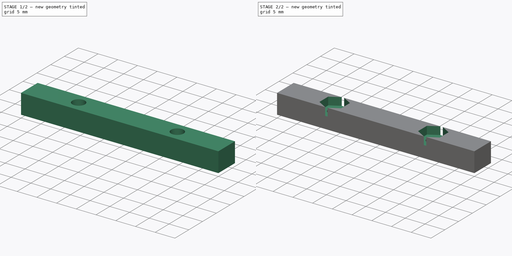
[diagram: build sequence overview — one tinted view per stage of 2, left to right]
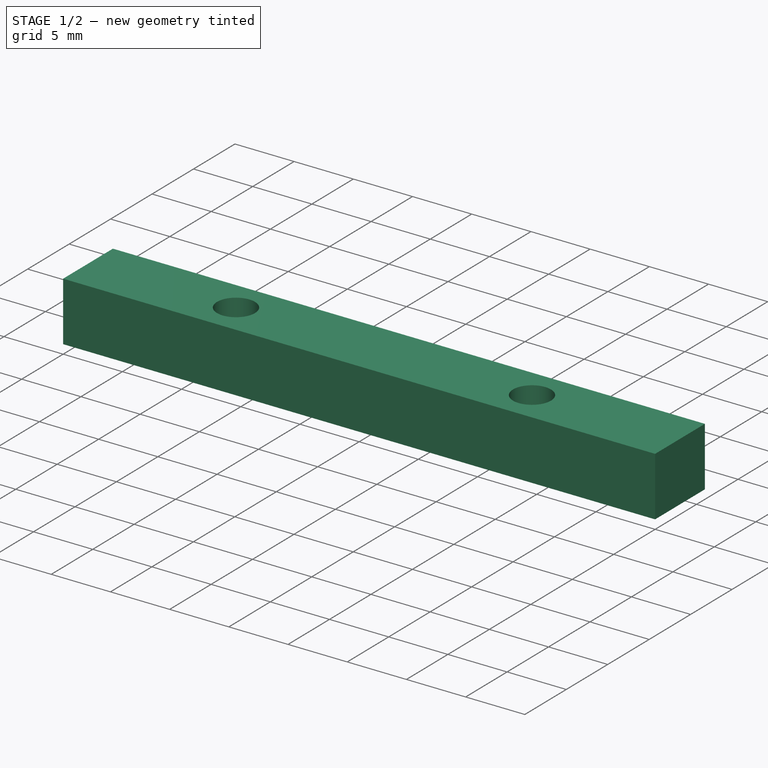
[diagram: stage 1 of 2 — iso view after this stage's code; geometry added in this stage tinted green]
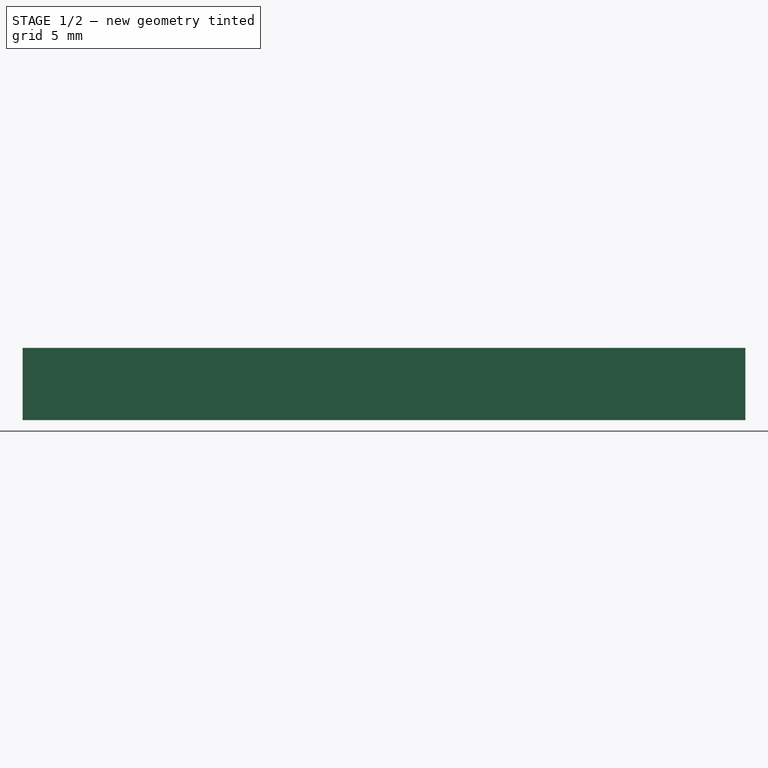
[diagram: stage 1 of 2 — front view after this stage's code; geometry added in this stage tinted green]
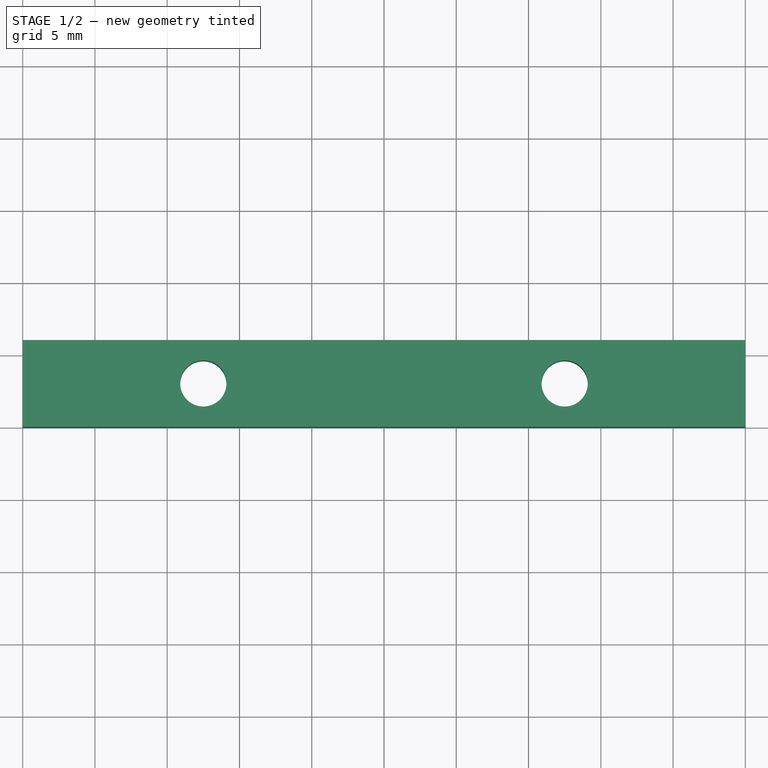
[diagram: stage 1 of 2 — top view after this stage's code; geometry added in this stage tinted green]
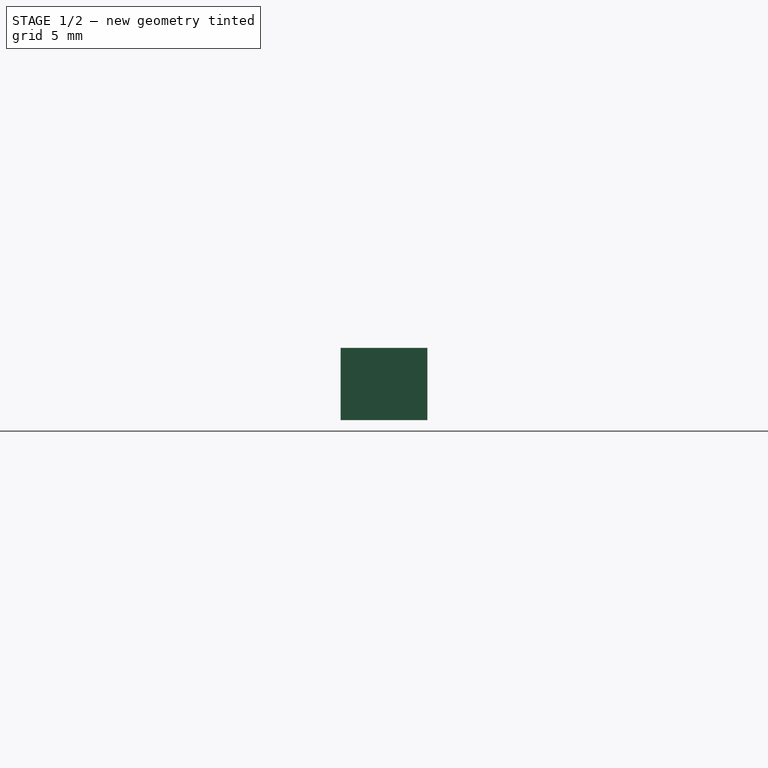
[diagram: stage 1 of 2 — right view after this stage's code; geometry added in this stage tinted green]
FCSTD DOCUMENT  (FreeCAD 0.17R13541 (Git))
Label: nut_holder
License: All rights reserved
LicenseURL: http://en.wikipedia.org/wiki/All_rights_reserved
objects: Sketcher::SketchObject×3, PartDesign::Pocket×2, PartDesign::Pad×1, PartDesign::Body×1
note: 10 computed .brp shape members not serialized (recipe doc carries the construction recipe); baked Part::Feature solids carry a one-line shape summary decoded from their .brp

FEATURE [Sketcher::SketchObject] Sketch
  MapMode = 5
  Support = -> [XY_Plane]
  sketch-geometry (4):
    g0: LineSegment StartX=0 StartY=6 StartZ=0 EndX=50 EndY=6 EndZ=0
    g1: LineSegment StartX=50 StartY=6 StartZ=0 EndX=50 EndY=0 EndZ=0
    g2: LineSegment StartX=50 StartY=0 StartZ=0 EndX=0 EndY=0 EndZ=0
    g3: LineSegment StartX=0 StartY=0 StartZ=0 EndX=0 EndY=6 EndZ=0
  constraints (11):
    c: Coincident(g0,g1)
    c: Coincident(g1,g2)
    c: Coincident(g2,g3)
    c: Coincident(g3,g0)
    c: Horizontal(g0)
    c: Horizontal(g2)
    c: Vertical(g1)
    c: Vertical(g3)
    c: Coincident(g2,g-1)
    c: DistanceY(g3,g3) = 6
    c: DistanceX(g0,g0) = 50
FEATURE [PartDesign::Pad] Pad
  Length = 5
  Length2 = 100
  Profile = -> Sketch
  Type = 0
FEATURE [Sketcher::SketchObject] Sketch001
  MapMode = 5
  Placement = pos=(0,0,5) rot=(0,0,1;0rad)
  Support = -> [Pad]
  sketch-geometry (2):
    g0: Circle CenterX=12.5 CenterY=3 CenterZ=0 NormalX=0 NormalY=0 NormalZ=1 AngleXU=0 Radius=1.6
    g1: Circle CenterX=37.5 CenterY=3 CenterZ=0 NormalX=0 NormalY=0 NormalZ=1 AngleXU=0 Radius=1.6
  constraints (6):
    c: Horizontal(g1,g0)
    c: DistanceX(g0,g1) = 25
    c: DistanceX(g-1,g0) = 12.5
    c: Radius(g0) = 1.6
    c: Equal(g0,g1)
    c: DistanceY(g-1,g0) = 3
FEATURE [PartDesign::Pocket] Pocket
  BaseFeature = -> Pad
  Length = 5
  Length2 = 100
  Profile = -> Sketch001
  Type = 0
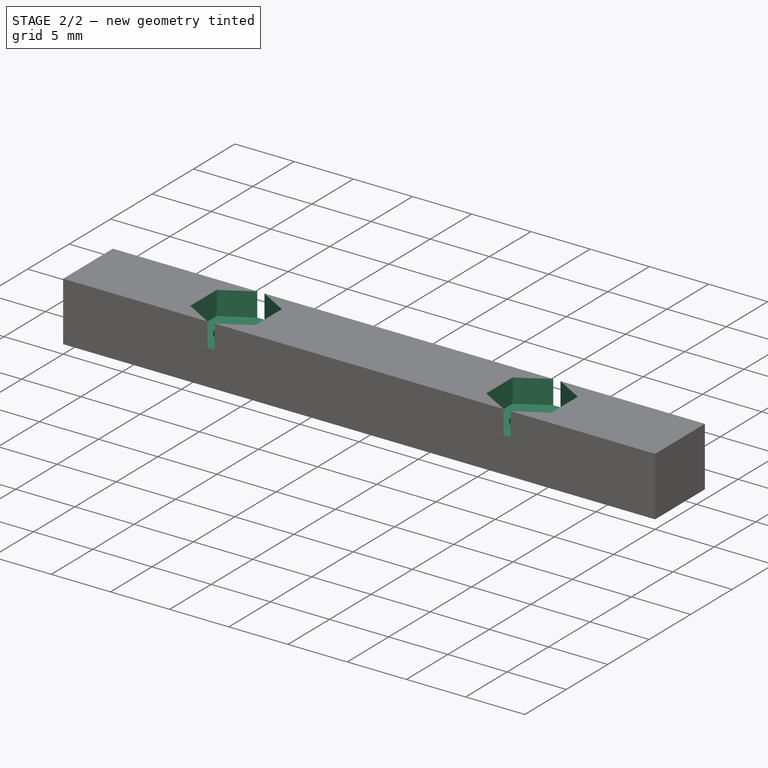
[diagram: stage 2 of 2 — iso view after this stage's code; geometry added in this stage tinted green]
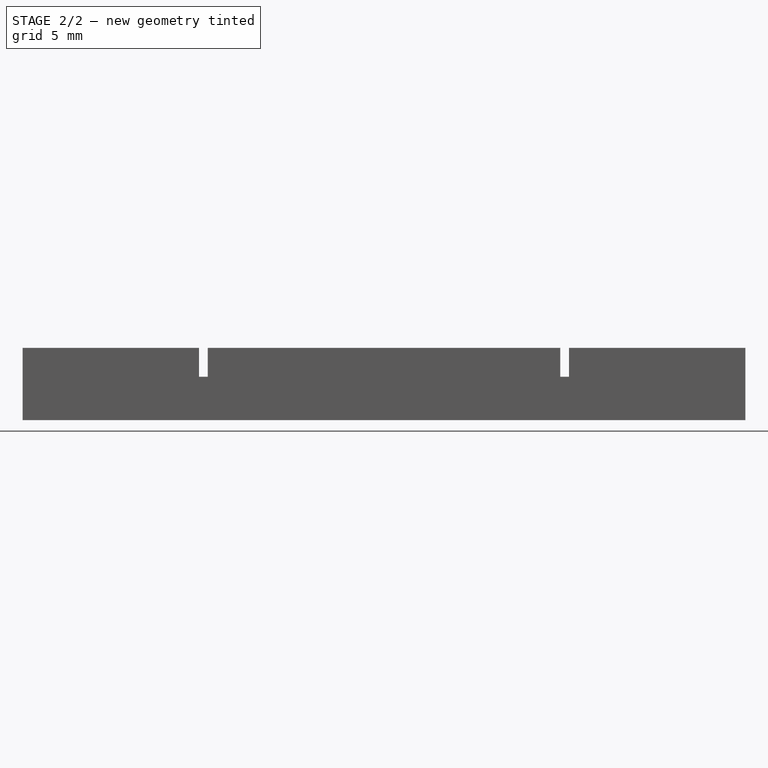
[diagram: stage 2 of 2 — front view after this stage's code; geometry added in this stage tinted green]
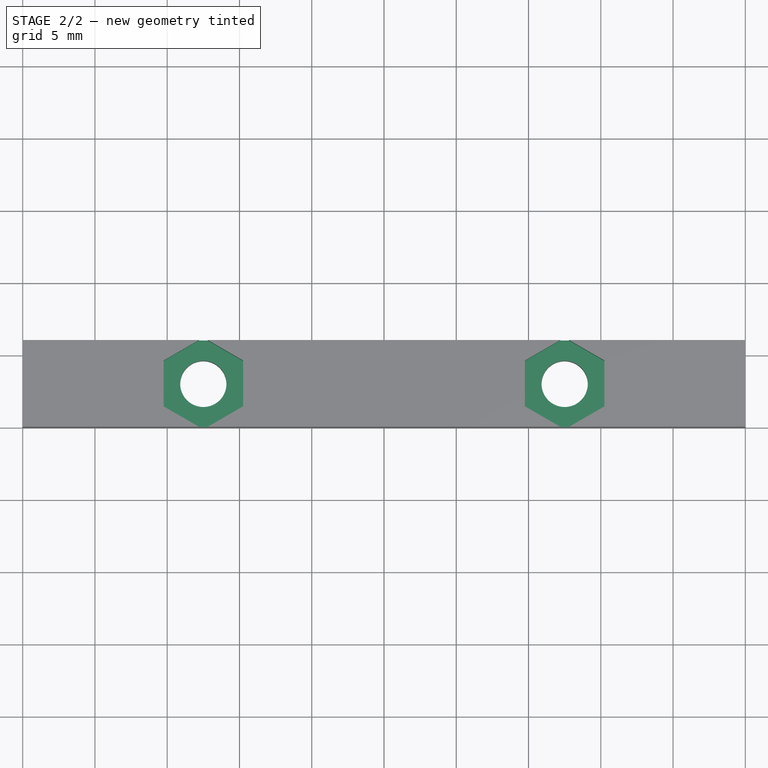
[diagram: stage 2 of 2 — top view after this stage's code; geometry added in this stage tinted green]
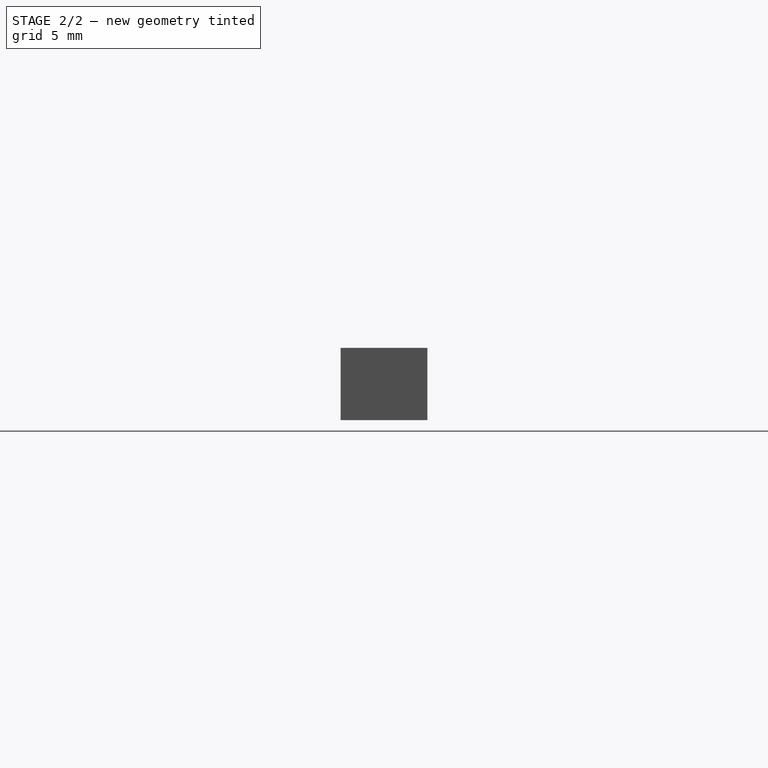
[diagram: stage 2 of 2 — right view after this stage's code; geometry added in this stage tinted green]
FEATURE [Sketcher::SketchObject] Sketch002
  MapMode = 5
  Placement = pos=(0,0,5) rot=(0,0,1;0rad)
  Support = -> [Pocket]
  sketch-geometry (14):
    g0: LineSegment StartX=15.25 StartY=4.58771 StartZ=0 EndX=12.5 EndY=6.17543 EndZ=0
    g1: LineSegment StartX=12.5 StartY=6.17543 StartZ=0 EndX=9.75 EndY=4.58771 EndZ=0
    g2: LineSegment StartX=9.75 StartY=4.58771 StartZ=0 EndX=9.75 EndY=1.41229 EndZ=0
    g3: LineSegment StartX=9.75 StartY=1.41229 StartZ=0 EndX=12.5 EndY=-0.175426 EndZ=0
    g4: LineSegment StartX=12.5 StartY=-0.175426 StartZ=0 EndX=15.25 EndY=1.41229 EndZ=0
    g5: LineSegment StartX=15.25 StartY=1.41229 StartZ=0 EndX=15.25 EndY=4.58771 EndZ=0
    g6: Circle [constr] CenterX=12.5 CenterY=3 CenterZ=0 NormalX=0 NormalY=0 NormalZ=1 AngleXU=0 Radius=3.17543
    g7: LineSegment StartX=40.25 StartY=1.41229 StartZ=0 EndX=40.25 EndY=4.58771 EndZ=0
    g8: LineSegment StartX=40.25 StartY=4.58771 StartZ=0 EndX=37.5 EndY=6.17543 EndZ=0
    g9: LineSegment StartX=37.5 StartY=6.17543 StartZ=0 EndX=34.75 EndY=4.58771 EndZ=0
    g10: LineSegment StartX=34.75 StartY=4.58771 StartZ=0 EndX=34.75 EndY=1.41229 EndZ=0
    g11: LineSegment StartX=34.75 StartY=1.41229 StartZ=0 EndX=37.5 EndY=-0.175426 EndZ=0
    g12: LineSegment StartX=37.5 StartY=-0.175426 StartZ=0 EndX=40.25 EndY=1.41229 EndZ=0
    g13: Circle [constr] CenterX=37.5 CenterY=3 CenterZ=0 NormalX=0 NormalY=0 NormalZ=1 AngleXU=0 Radius=3.17543
  constraints (34):
    c: Coincident(g0,g1)
    c: Coincident(g1,g2)
    c: Coincident(g2,g3)
    c: Coincident(g3,g4)
    c: Coincident(g4,g5)
    c: Coincident(g5,g0)
    c: Equal(g0, g1-g5) x5
    c: PointOnObject(g0,g6)
    c: PointOnObject(g1,g6)
    c: PointOnObject(g2,g6)
    c: PointOnObject(g3,g6)
    c: PointOnObject(g4,g6)
    c: PointOnObject(g5,g6)
    c: Coincident(g7,g8)
    c: Coincident(g8,g9)
    c: Coincident(g9,g10)
    c: Coincident(g10,g11)
    c: Coincident(g11,g12)
    c: Coincident(g12,g7)
    c: Equal(g7, g8-g12) x5
    c: PointOnObject(g7,g13)
    c: PointOnObject(g8,g13)
    c: PointOnObject(g9,g13)
    c: PointOnObject(g10,g13)
    c: PointOnObject(g11,g13)
    c: PointOnObject(g12,g13)
    c: Horizontal(g6,g13)
    c: DistanceX(g6,g13) = 25
    c: DistanceY(g-1,g6) = 3
    c: DistanceX(g-1,g6) = 12.5
    c: Vertical(g10)
    c: Vertical(g2)
    c: DistanceX(g1,g0) = 5.5
    c: DistanceX(g9,g7) = 5.5
FEATURE [PartDesign::Pocket] Pocket001
  BaseFeature = -> Pocket
  Length = 2
  Length2 = 100
  Profile = -> Sketch002
  Type = 0
FEATURE [PartDesign::Body] Body
  Group = -> [Sketch,Pad,Sketch001,Pocket,Sketch002,Pocket001]
  Origin = -> Origin
  Tip = -> Pocket001
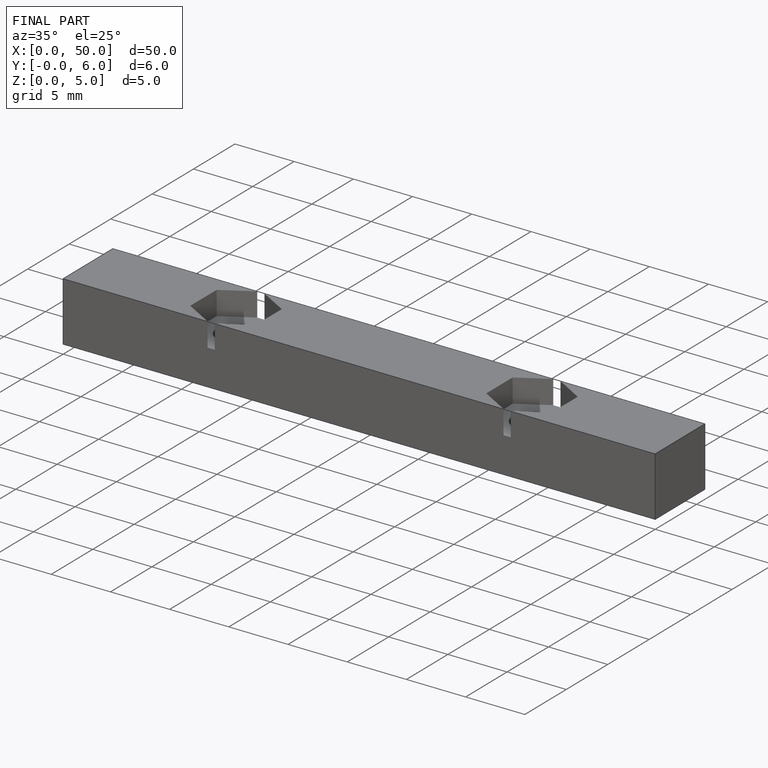
[diagram: finished part — iso view with bounding-box wireframe]
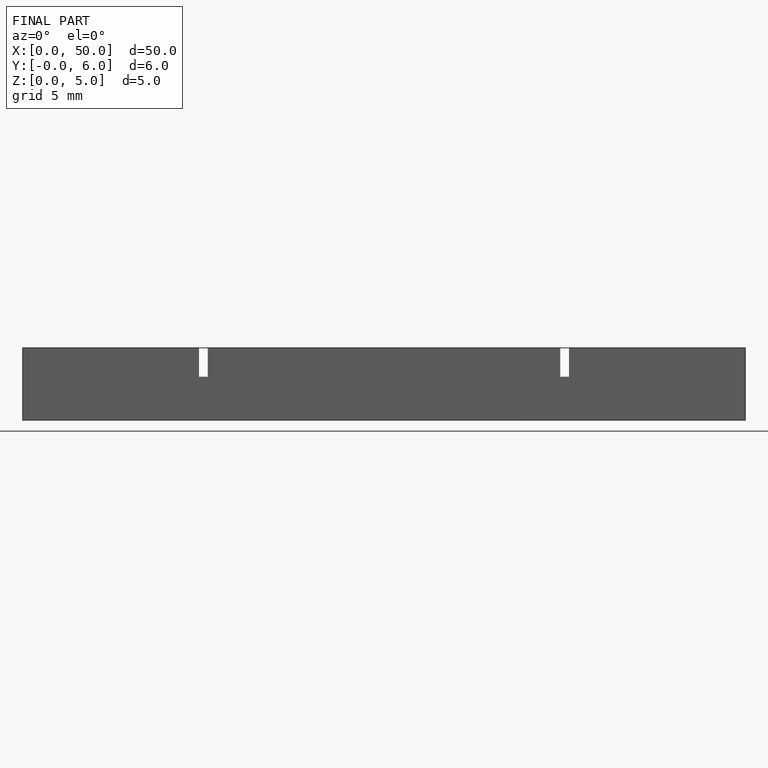
[diagram: finished part — front view with bounding-box wireframe]
